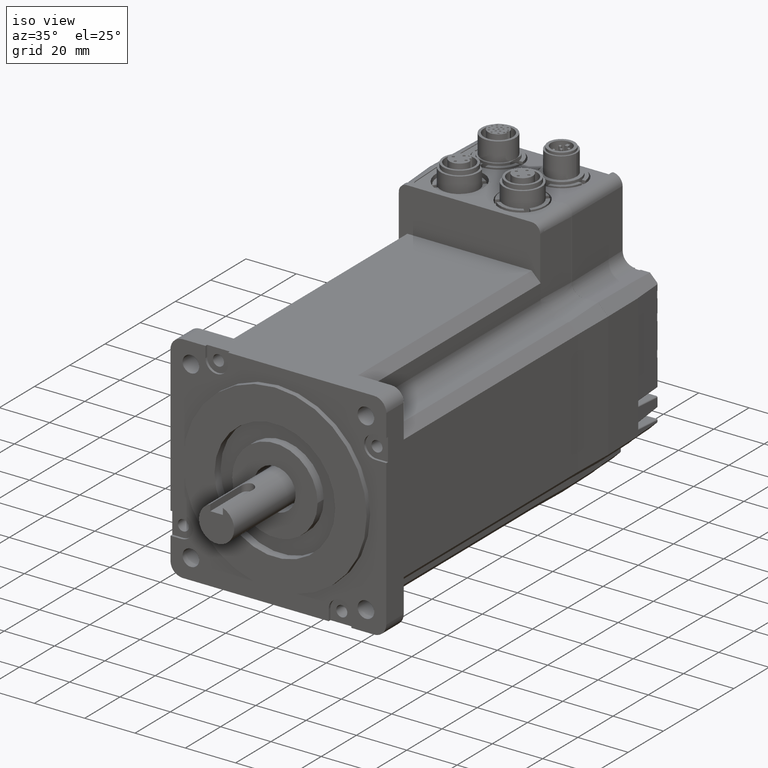
[diagram: clean part render]
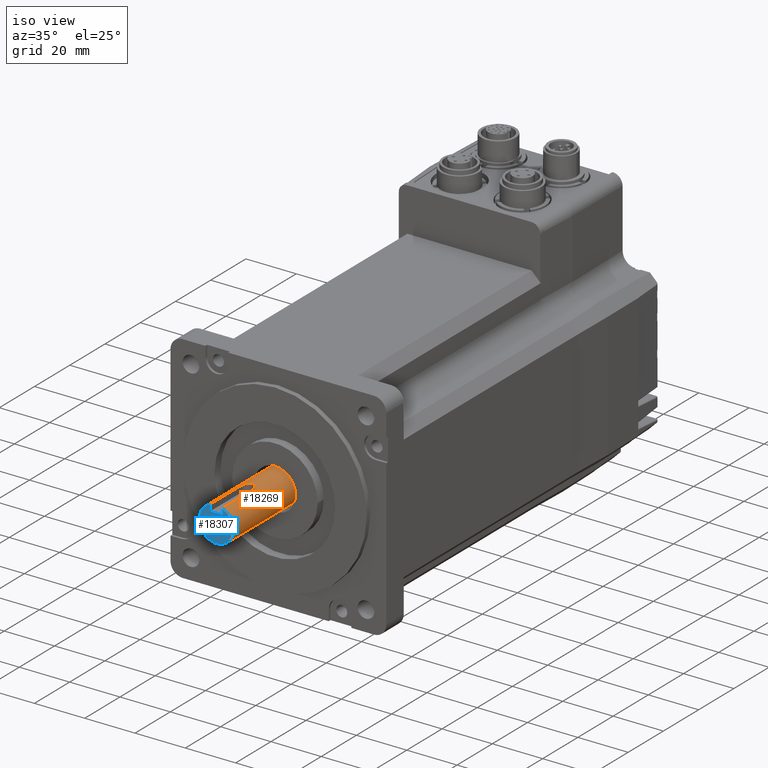
[diagram: same view with the hole feature highlighted: cylindrical wall and planar end face, labeled with their STEP entity ids]
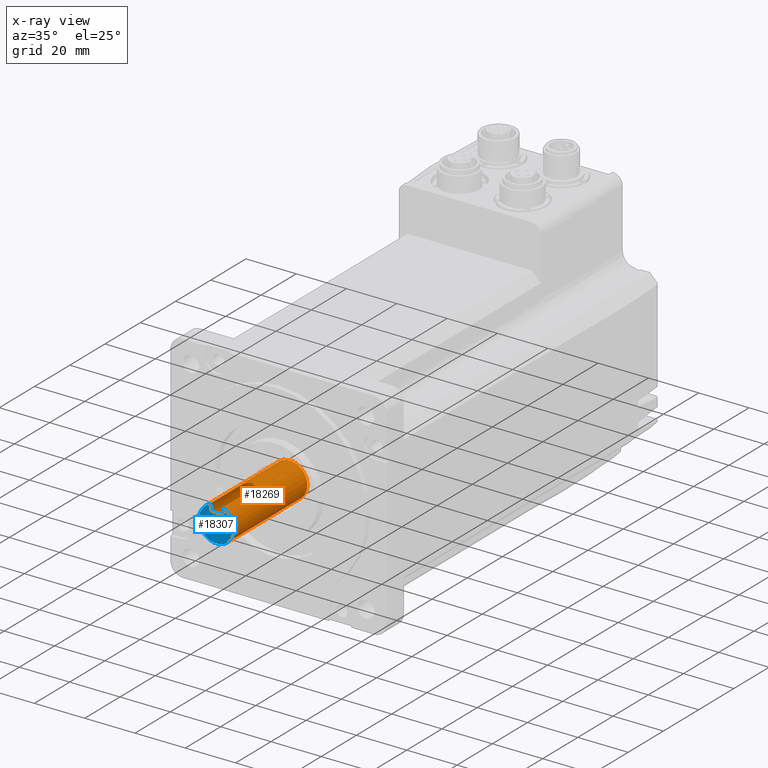
[diagram: x-ray of the same camera — body ghosted, the hole faces saturated]
A machine part, iso view. The highlighted faces form one hole feature of diameter 14 mm: the cylindrical wall (entity #18269, orange) and its adjacent planar end face (entity #18307, blue) — they share a circular edge in the B-rep.
The next image is the same camera in x-ray (body ghosted, the hole faces saturated) — the bore reads through the body.
Wall:
#225=ELLIPSE('',#19340,211.29976414967,7.);
#226=ELLIPSE('',#19342,211.299764149668,7.);
#484=B_SPLINE_CURVE_WITH_KNOTS('',3,(#26723,#26724,#26725,#26726),
 .UNSPECIFIED.,.F.,.F.,(4,4),(0.011656551957176,0.0118210449232735),
 .UNSPECIFIED.);
#485=B_SPLINE_CURVE_WITH_KNOTS('',3,(#26733,#26734,#26735,#26736,#26737,
#26738,#26739),.UNSPECIFIED.,.F.,.F.,(4,1,1,1,4),(0.,0.0020110707680309,
0.00402214153606181,0.00603321230409271,0.00804428307212362),
 .UNSPECIFIED.);
#555=CIRCLE('',#19344,7.);
#556=CIRCLE('',#19345,7.);
#1207=CYLINDRICAL_SURFACE('',#19343,7.);
#1762=ORIENTED_EDGE('',*,*,#6454,.F.);
#1763=ORIENTED_EDGE('',*,*,#6451,.F.);
#1764=ORIENTED_EDGE('',*,*,#6456,.F.);
#1765=ORIENTED_EDGE('',*,*,#6445,.T.);
#1766=ORIENTED_EDGE('',*,*,#6457,.F.);
#1767=ORIENTED_EDGE('',*,*,#6441,.F.);
#1768=ORIENTED_EDGE('',*,*,#6448,.F.);
#1769=ORIENTED_EDGE('',*,*,#6458,.F.);
#6441=EDGE_CURVE('',#8779,#8777,#10277,.T.);
#6445=EDGE_CURVE('',#8780,#8783,#10281,.T.);
#6448=EDGE_CURVE('',#8785,#8779,#484,.T.);
#6451=EDGE_CURVE('',#8788,#8789,#485,.T.);
#6454=EDGE_CURVE('',#8789,#8785,#225,.F.);
#6456=EDGE_CURVE('',#8780,#8788,#226,.F.);
#6457=EDGE_CURVE('',#8777,#8783,#555,.T.);
#6458=EDGE_CURVE('',#8790,#8790,#556,.F.);
#8777=VERTEX_POINT('',#26703);
#8779=VERTEX_POINT('',#26707);
#8780=VERTEX_POINT('',#26711);
#8783=VERTEX_POINT('',#26716);
#8785=VERTEX_POINT('',#26722);
#8788=VERTEX_POINT('',#26732);
#8789=VERTEX_POINT('',#26740);
#8790=VERTEX_POINT('',#26751);
#10277=LINE('',#26708,#11667);
#10281=LINE('',#26717,#11671);
#11667=VECTOR('',#21410,1000.);
#11671=VECTOR('',#21416,1000.);
#12996=EDGE_LOOP('',(#1762,#1763,#1764,#1765,#1766,#1767,#1768));
#12997=EDGE_LOOP('',(#1769));
#14205=FACE_BOUND('',#12996,.T.);
#14206=FACE_BOUND('',#12997,.T.);
#18269=ADVANCED_FACE('',(#14205,#14206),#1207,.T.);
#19340=AXIS2_PLACEMENT_3D('',#26744,#21431,#21432);
#19342=AXIS2_PLACEMENT_3D('',#26747,#21436,#21437);
#19343=AXIS2_PLACEMENT_3D('',#26748,#21438,#21439);
#19344=AXIS2_PLACEMENT_3D('',#26749,#21440,#21441);
#19345=AXIS2_PLACEMENT_3D('',#26750,#21442,#21443);
#21410=DIRECTION('',(0.,-1.,0.));
#21416=DIRECTION('',(0.,-1.,0.));
#21431=DIRECTION('',(-0.999451107537998,0.0331282906451409,0.));
#21432=DIRECTION('',(0.033128290645141,0.999451107537998,0.));
#21436=DIRECTION('',(0.999451107537998,-0.0331282906451413,0.));
#21437=DIRECTION('',(0.0331282906451413,0.999451107537998,0.));
#21438=DIRECTION('',(0.,1.,0.));
#21439=DIRECTION('',(0.,0.,1.));
#21440=DIRECTION('',(0.,-1.,0.));
#21441=DIRECTION('',(0.,0.,1.));
#21442=DIRECTION('',(0.,-1.,0.));
#21443=DIRECTION('',(0.,0.,-1.));
#26703=CARTESIAN_POINT('',(44.465625,-35.1,70.602098415311));
#26707=CARTESIAN_POINT('',(44.465625,-19.6,70.602098415311));
#26708=CARTESIAN_POINT('',(44.465625,-22.1,70.602098415311));
#26711=CARTESIAN_POINT('',(49.465625,-19.6,70.602098415311));
#26716=CARTESIAN_POINT('',(49.465625,-35.1,70.602098415311));
#26717=CARTESIAN_POINT('',(49.465625,-22.1,70.602098415311));
#26722=CARTESIAN_POINT('',(44.4711124182053,-19.4344494661194,70.6041939435919));
#26723=CARTESIAN_POINT('',(44.4711124182053,-19.4344494661194,70.6041939435921));
#26724=CARTESIAN_POINT('',(44.4674394664202,-19.4897934401041,70.6027930869348));
#26725=CARTESIAN_POINT('',(44.465625,-19.5449757245024,70.602098415311));
#26726=CARTESIAN_POINT('',(44.465625,-19.6,70.602098415311));
#26732=CARTESIAN_POINT('',(49.5248008451704,-17.8147173052604,70.5791639541165));
#26733=CARTESIAN_POINT('',(49.5248008451704,-17.8147173052604,70.5791639541165));
#26734=CARTESIAN_POINT('',(49.5698425373818,-17.1360298658848,70.5614721218638));
#26735=CARTESIAN_POINT('',(49.0893369227959,-15.7874281388371,70.7871035272101));
#26736=CARTESIAN_POINT('',(47.1322081068403,-14.8656068117674,71.178674438107));
#26737=CARTESIAN_POINT('',(45.0941237016617,-15.6545314323024,70.8706532173836));
#26738=CARTESIAN_POINT('',(44.5302882633757,-16.9687035896293,70.6264578998877));
#26739=CARTESIAN_POINT('',(44.5302882633758,-17.6491667713798,70.6264578998877));
#26740=CARTESIAN_POINT('',(44.5302882633757,-17.6491667713798,70.6264578998877));
#26744=CARTESIAN_POINT('',(46.965625,55.8227797506806,64.06375));
#26747=CARTESIAN_POINT('',(46.965625,-95.0227797506798,64.06375));
#26748=CARTESIAN_POINT('',(46.965625,-185.579384630418,64.06375));
#26749=CARTESIAN_POINT('',(46.965625,-35.1,64.06375));
#26750=CARTESIAN_POINT('',(46.965625,6.50000000000001,64.06375));
#26751=CARTESIAN_POINT('',(46.965625,6.50000000000001,57.06375));
End face:
#555=CIRCLE('',#19344,7.);
#1943=ORIENTED_EDGE('',*,*,#6515,.T.);
#1944=ORIENTED_EDGE('',*,*,#6438,.T.);
#1945=ORIENTED_EDGE('',*,*,#6457,.T.);
#1946=ORIENTED_EDGE('',*,*,#6444,.T.);
#6438=EDGE_CURVE('',#8776,#8777,#10274,.T.);
#6444=EDGE_CURVE('',#8783,#8782,#10280,.T.);
#6457=EDGE_CURVE('',#8777,#8783,#555,.T.);
#6515=EDGE_CURVE('',#8782,#8776,#10311,.T.);
#8776=VERTEX_POINT('',#26702);
#8777=VERTEX_POINT('',#26703);
#8782=VERTEX_POINT('',#26714);
#8783=VERTEX_POINT('',#26716);
#10274=LINE('',#26701,#11664);
#10280=LINE('',#26715,#11670);
#10311=LINE('',#26878,#11701);
#11664=VECTOR('',#21407,1000.);
#11670=VECTOR('',#21415,1000.);
#11701=VECTOR('',#21608,1000.);
#13060=EDGE_LOOP('',(#1943,#1944,#1945,#1946));
#14269=FACE_BOUND('',#13060,.T.);
#15422=PLANE('',#19415);
#18307=ADVANCED_FACE('',(#14269),#15422,.T.);
#19344=AXIS2_PLACEMENT_3D('',#26749,#21440,#21441);
#19415=AXIS2_PLACEMENT_3D('',#26877,#21606,#21607);
#21407=DIRECTION('',(0.,0.,1.));
#21415=DIRECTION('',(0.,0.,-1.));
#21440=DIRECTION('',(0.,-1.,0.));
#21441=DIRECTION('',(0.,0.,1.));
#21606=DIRECTION('',(0.,-1.,0.));
#21607=DIRECTION('',(0.,0.,-1.));
#21608=DIRECTION('',(-1.,0.,0.));
#26701=CARTESIAN_POINT('',(44.465625,-35.1,67.96375));
#26702=CARTESIAN_POINT('',(44.465625,-35.1,68.06375));
#26703=CARTESIAN_POINT('',(44.465625,-35.1,70.602098415311));
#26714=CARTESIAN_POINT('',(49.465625,-35.1,68.06375));
#26715=CARTESIAN_POINT('',(49.465625,-35.1,70.602098415311));
#26716=CARTESIAN_POINT('',(49.465625,-35.1,70.602098415311));
#26749=CARTESIAN_POINT('',(46.965625,-35.1,64.06375));
#26877=CARTESIAN_POINT('',(46.965625,-35.1,64.06375));
#26878=CARTESIAN_POINT('',(49.465625,-35.1,68.06375));